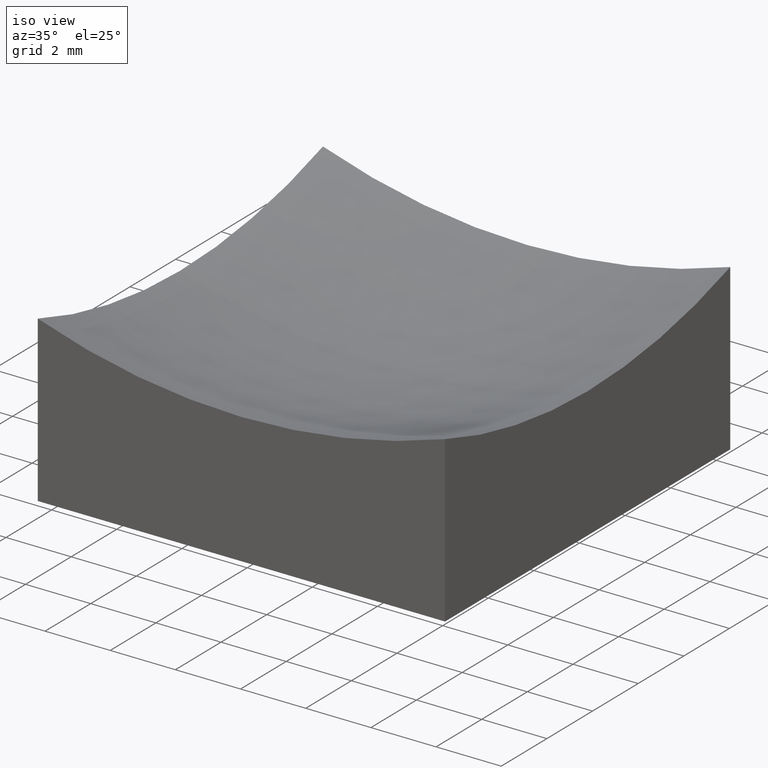
[diagram: clean part render]
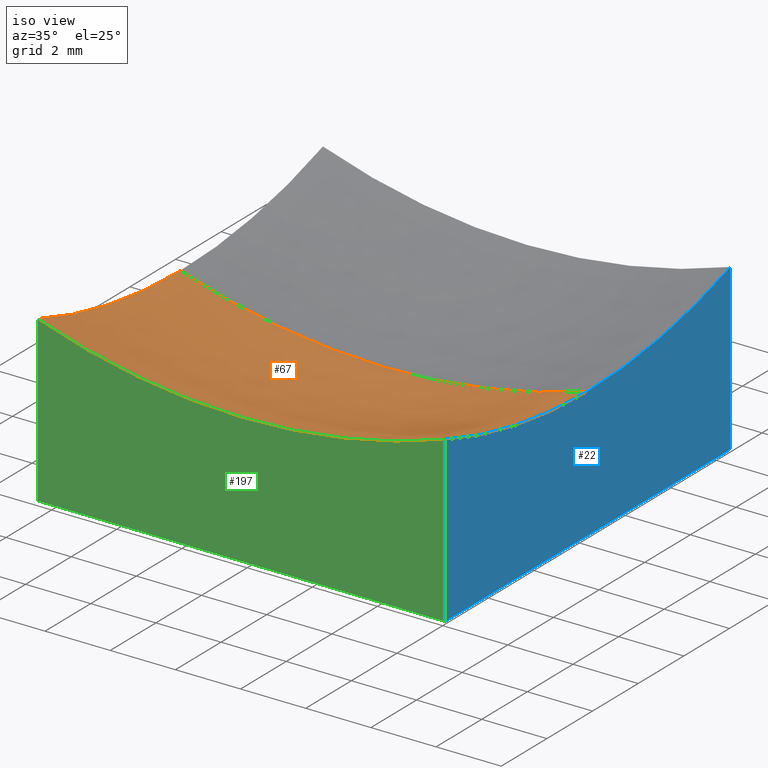
[diagram: same view with three faces highlighted in distinct colors, each labeled with its STEP entity id]
A machine part, iso view with three faces highlighted in distinct colors.
Their STEP definitions:

[orange] entity #67 — the highlighted spherical surface has radius 20 mm.
#4 = CARTESIAN_POINT ( 'NONE',  ( 6.250000000000000000, 0.0000000000000000000, 4.001644808036667555 ) ) ;
#5 = DIRECTION ( 'NONE',  ( -0.0000000000000000000, 1.000000000000000000, 0.0000000000000000000 ) ) ;
#7 = AXIS2_PLACEMENT_3D ( 'NONE', #27, #5, #236 ) ;
#14 = ORIENTED_EDGE ( 'NONE', *, *, #207, .F. ) ;
#18 = DIRECTION ( 'NONE',  ( 0.0000000000000000000, 1.000000000000000000, 0.0000000000000000000 ) ) ;
#27 = CARTESIAN_POINT ( 'NONE',  ( 2.816687638038912352E-15, 0.0000000000000000000, 23.00000000000000000 ) ) ;
#32 = EDGE_LOOP ( 'NONE', ( #192, #167, #110, #14, #208 ) ) ;
#34 = VERTEX_POINT ( 'NONE', #65 ) ;
#37 = AXIS2_PLACEMENT_3D ( 'NONE', #209, #18, #98 ) ;
#44 = FACE_OUTER_BOUND ( 'NONE', #32, .T. ) ;
#62 = DIRECTION ( 'NONE',  ( 1.224646799147353207E-16, 1.000000000000000000, 2.504325565046283805E-32 ) ) ;
#63 = DIRECTION ( 'NONE',  ( 1.000000000000000000, 0.0000000000000000000, -0.0000000000000000000 ) ) ;
#64 = AXIS2_PLACEMENT_3D ( 'NONE', #200, #202, #74 ) ;
#65 = CARTESIAN_POINT ( 'NONE',  ( 6.250000000000000000, -6.250000000000000888, 5.059124881990842759 ) ) ;
#66 = CARTESIAN_POINT ( 'NONE',  ( -6.250000000000000000, -6.250000000000000888, 5.059124881990846312 ) ) ;
#67 = ADVANCED_FACE ( 'NONE', ( #44 ), #85, .F. ) ;
#73 = VERTEX_POINT ( 'NONE', #183 ) ;
#74 = DIRECTION ( 'NONE',  ( 0.0000000000000000000, 0.0000000000000000000, -1.000000000000000000 ) ) ;
#85 = SPHERICAL_SURFACE ( 'NONE', #7, 20.00000000000000000 ) ;
#90 = EDGE_CURVE ( 'NONE', #149, #73, #215, .T. ) ;
#96 = AXIS2_PLACEMENT_3D ( 'NONE', #193, #121, #246 ) ;
#98 = DIRECTION ( 'NONE',  ( 0.0000000000000000000, 0.0000000000000000000, 1.000000000000000000 ) ) ;
#110 = ORIENTED_EDGE ( 'NONE', *, *, #203, .F. ) ;
#116 = EDGE_CURVE ( 'NONE', #34, #146, #178, .T. ) ;
#119 = CIRCLE ( 'NONE', #96, 18.99835519196332712 ) ;
#121 = DIRECTION ( 'NONE',  ( 1.000000000000000000, 0.0000000000000000000, -0.0000000000000000000 ) ) ;
#138 = CIRCLE ( 'NONE', #37, 18.99835519196332712 ) ;
#141 = AXIS2_PLACEMENT_3D ( 'NONE', #182, #63, #237 ) ;
#145 = CARTESIAN_POINT ( 'NONE',  ( 8.131208459295974111E-15, 0.0000000000000000000, 2.999999999999999112 ) ) ;
#146 = VERTEX_POINT ( 'NONE', #4 ) ;
#147 = VERTEX_POINT ( 'NONE', #66 ) ;
#149 = VERTEX_POINT ( 'NONE', #145 ) ;
#167 = ORIENTED_EDGE ( 'NONE', *, *, #90, .T. ) ;
#168 = CIRCLE ( 'NONE', #64, 20.00000000000000000 ) ;
#172 = EDGE_CURVE ( 'NONE', #149, #146, #168, .T. ) ;
#178 = CIRCLE ( 'NONE', #141, 18.99835519196333067 ) ;
#182 = CARTESIAN_POINT ( 'NONE',  ( 6.250000000000000000, 0.0000000000000000000, 23.00000000000000000 ) ) ;
#183 = CARTESIAN_POINT ( 'NONE',  ( -6.250000000000000000, 7.654042494670965495E-16, 4.001644808036671108 ) ) ;
#184 = DIRECTION ( 'NONE',  ( -1.000000000000000000, 1.224646799147353207E-16, 0.0000000000000000000 ) ) ;
#192 = ORIENTED_EDGE ( 'NONE', *, *, #172, .F. ) ;
#193 = CARTESIAN_POINT ( 'NONE',  ( -6.250000000000000000, 0.0000000000000000000, 23.00000000000000000 ) ) ;
#200 = CARTESIAN_POINT ( 'NONE',  ( 2.816687638038912352E-15, 0.0000000000000000000, 23.00000000000000000 ) ) ;
#202 = DIRECTION ( 'NONE',  ( 0.0000000000000000000, -1.000000000000000000, 0.0000000000000000000 ) ) ;
#203 = EDGE_CURVE ( 'NONE', #147, #73, #119, .T. ) ;
#207 = EDGE_CURVE ( 'NONE', #34, #147, #138, .T. ) ;
#208 = ORIENTED_EDGE ( 'NONE', *, *, #116, .T. ) ;
#209 = CARTESIAN_POINT ( 'NONE',  ( 2.816687638038912352E-15, -6.250000000000000888, 23.00000000000000000 ) ) ;
#215 = CIRCLE ( 'NONE', #231, 20.00000000000000000 ) ;
#231 = AXIS2_PLACEMENT_3D ( 'NONE', #234, #62, #184 ) ;
#234 = CARTESIAN_POINT ( 'NONE',  ( 2.816687638038912352E-15, 0.0000000000000000000, 23.00000000000000000 ) ) ;
#236 = DIRECTION ( 'NONE',  ( 1.000000000000000000, 0.0000000000000000000, 1.734723475976807094E-16 ) ) ;
#237 = DIRECTION ( 'NONE',  ( 0.0000000000000000000, 0.0000000000000000000, -1.000000000000000000 ) ) ;
#246 = DIRECTION ( 'NONE',  ( 0.0000000000000000000, 0.0000000000000000000, -1.000000000000000000 ) ) ;

[blue] entity #22 — the highlighted planar face has unit normal (1, 0, -0).
#1 = EDGE_CURVE ( 'NONE', #211, #97, #94, .T. ) ;
#2 = VECTOR ( 'NONE', #133, 1000.000000000000000 ) ;
#4 = CARTESIAN_POINT ( 'NONE',  ( 6.250000000000000000, 0.0000000000000000000, 4.001644808036667555 ) ) ;
#15 = PLANE ( 'NONE',  #53 ) ;
#21 = DIRECTION ( 'NONE',  ( -0.0000000000000000000, -0.0000000000000000000, -1.000000000000000000 ) ) ;
#22 = ADVANCED_FACE ( 'NONE', ( #190 ), #15, .T. ) ;
#28 = LINE ( 'NONE', #127, #139 ) ;
#34 = VERTEX_POINT ( 'NONE', #65 ) ;
#35 = CARTESIAN_POINT ( 'NONE',  ( 6.250000000000000000, 0.0000000000000000000, 23.00000000000000000 ) ) ;
#38 = ORIENTED_EDGE ( 'NONE', *, *, #163, .F. ) ;
#51 = DIRECTION ( 'NONE',  ( -0.0000000000000000000, 0.0000000000000000000, -1.000000000000000000 ) ) ;
#52 = ORIENTED_EDGE ( 'NONE', *, *, #1, .F. ) ;
#53 = AXIS2_PLACEMENT_3D ( 'NONE', #76, #224, #51 ) ;
#56 = CARTESIAN_POINT ( 'NONE',  ( 6.250000000000000000, 6.250000000000000888, 10.00000000000000000 ) ) ;
#57 = DIRECTION ( 'NONE',  ( 0.0000000000000000000, 0.0000000000000000000, -1.000000000000000000 ) ) ;
#59 = VERTEX_POINT ( 'NONE', #199 ) ;
#63 = DIRECTION ( 'NONE',  ( 1.000000000000000000, 0.0000000000000000000, -0.0000000000000000000 ) ) ;
#65 = CARTESIAN_POINT ( 'NONE',  ( 6.250000000000000000, -6.250000000000000888, 5.059124881990842759 ) ) ;
#76 = CARTESIAN_POINT ( 'NONE',  ( 6.250000000000000000, 6.250000000000000888, 10.00000000000000000 ) ) ;
#93 = ORIENTED_EDGE ( 'NONE', *, *, #180, .T. ) ;
#94 = LINE ( 'NONE', #56, #2 ) ;
#97 = VERTEX_POINT ( 'NONE', #142 ) ;
#100 = CARTESIAN_POINT ( 'NONE',  ( 6.250000000000000000, 6.250000000000000888, 5.059124881990842759 ) ) ;
#102 = CIRCLE ( 'NONE', #187, 18.99835519196333067 ) ;
#112 = ORIENTED_EDGE ( 'NONE', *, *, #232, .F. ) ;
#116 = EDGE_CURVE ( 'NONE', #34, #146, #178, .T. ) ;
#117 = LINE ( 'NONE', #195, #239 ) ;
#125 = DIRECTION ( 'NONE',  ( 0.0000000000000000000, -1.000000000000000000, 0.0000000000000000000 ) ) ;
#127 = CARTESIAN_POINT ( 'NONE',  ( 6.250000000000000000, 6.250000000000000888, 0.0000000000000000000 ) ) ;
#130 = ORIENTED_EDGE ( 'NONE', *, *, #116, .F. ) ;
#133 = DIRECTION ( 'NONE',  ( -0.0000000000000000000, -0.0000000000000000000, -1.000000000000000000 ) ) ;
#139 = VECTOR ( 'NONE', #125, 1000.000000000000000 ) ;
#141 = AXIS2_PLACEMENT_3D ( 'NONE', #182, #63, #237 ) ;
#142 = CARTESIAN_POINT ( 'NONE',  ( 6.250000000000000000, 6.250000000000000888, 0.0000000000000000000 ) ) ;
#146 = VERTEX_POINT ( 'NONE', #4 ) ;
#163 = EDGE_CURVE ( 'NONE', #97, #59, #28, .T. ) ;
#171 = DIRECTION ( 'NONE',  ( 1.000000000000000000, 0.0000000000000000000, -0.0000000000000000000 ) ) ;
#178 = CIRCLE ( 'NONE', #141, 18.99835519196333067 ) ;
#180 = EDGE_CURVE ( 'NONE', #34, #59, #117, .T. ) ;
#182 = CARTESIAN_POINT ( 'NONE',  ( 6.250000000000000000, 0.0000000000000000000, 23.00000000000000000 ) ) ;
#187 = AXIS2_PLACEMENT_3D ( 'NONE', #35, #171, #57 ) ;
#190 = FACE_OUTER_BOUND ( 'NONE', #223, .T. ) ;
#195 = CARTESIAN_POINT ( 'NONE',  ( 6.250000000000000000, -6.250000000000000888, 10.00000000000000000 ) ) ;
#199 = CARTESIAN_POINT ( 'NONE',  ( 6.250000000000000000, -6.250000000000000888, 0.0000000000000000000 ) ) ;
#211 = VERTEX_POINT ( 'NONE', #100 ) ;
#223 = EDGE_LOOP ( 'NONE', ( #130, #93, #38, #52, #112 ) ) ;
#224 = DIRECTION ( 'NONE',  ( 1.000000000000000000, 0.0000000000000000000, -0.0000000000000000000 ) ) ;
#232 = EDGE_CURVE ( 'NONE', #146, #211, #102, .T. ) ;
#237 = DIRECTION ( 'NONE',  ( 0.0000000000000000000, 0.0000000000000000000, -1.000000000000000000 ) ) ;
#239 = VECTOR ( 'NONE', #21, 1000.000000000000000 ) ;

[green] entity #197 — the highlighted planar face has unit normal (0, 1, 0).
#16 = EDGE_LOOP ( 'NONE', ( #120, #170, #205, #148 ) ) ;
#18 = DIRECTION ( 'NONE',  ( 0.0000000000000000000, 1.000000000000000000, 0.0000000000000000000 ) ) ;
#19 = CARTESIAN_POINT ( 'NONE',  ( -6.250000000000000000, -6.250000000000000888, 0.0000000000000000000 ) ) ;
#20 = VERTEX_POINT ( 'NONE', #19 ) ;
#21 = DIRECTION ( 'NONE',  ( -0.0000000000000000000, -0.0000000000000000000, -1.000000000000000000 ) ) ;
#24 = DIRECTION ( 'NONE',  ( 1.000000000000000000, 0.0000000000000000000, 0.0000000000000000000 ) ) ;
#34 = VERTEX_POINT ( 'NONE', #65 ) ;
#37 = AXIS2_PLACEMENT_3D ( 'NONE', #209, #18, #98 ) ;
#39 = PLANE ( 'NONE',  #206 ) ;
#42 = EDGE_CURVE ( 'NONE', #147, #20, #201, .T. ) ;
#59 = VERTEX_POINT ( 'NONE', #199 ) ;
#65 = CARTESIAN_POINT ( 'NONE',  ( 6.250000000000000000, -6.250000000000000888, 5.059124881990842759 ) ) ;
#66 = CARTESIAN_POINT ( 'NONE',  ( -6.250000000000000000, -6.250000000000000888, 5.059124881990846312 ) ) ;
#68 = VECTOR ( 'NONE', #106, 1000.000000000000000 ) ;
#79 = CARTESIAN_POINT ( 'NONE',  ( -6.250000000000000000, -6.250000000000000888, 10.00000000000000000 ) ) ;
#82 = EDGE_CURVE ( 'NONE', #20, #59, #104, .T. ) ;
#98 = DIRECTION ( 'NONE',  ( 0.0000000000000000000, 0.0000000000000000000, 1.000000000000000000 ) ) ;
#104 = LINE ( 'NONE', #126, #185 ) ;
#106 = DIRECTION ( 'NONE',  ( -0.0000000000000000000, -0.0000000000000000000, -1.000000000000000000 ) ) ;
#117 = LINE ( 'NONE', #195, #239 ) ;
#120 = ORIENTED_EDGE ( 'NONE', *, *, #180, .F. ) ;
#126 = CARTESIAN_POINT ( 'NONE',  ( -6.250000000000000000, -6.250000000000000888, 0.0000000000000000000 ) ) ;
#138 = CIRCLE ( 'NONE', #37, 18.99835519196332712 ) ;
#147 = VERTEX_POINT ( 'NONE', #66 ) ;
#148 = ORIENTED_EDGE ( 'NONE', *, *, #82, .T. ) ;
#150 = DIRECTION ( 'NONE',  ( 0.0000000000000000000, 1.000000000000000000, 0.0000000000000000000 ) ) ;
#170 = ORIENTED_EDGE ( 'NONE', *, *, #207, .T. ) ;
#177 = FACE_OUTER_BOUND ( 'NONE', #16, .T. ) ;
#180 = EDGE_CURVE ( 'NONE', #34, #59, #117, .T. ) ;
#185 = VECTOR ( 'NONE', #24, 1000.000000000000000 ) ;
#195 = CARTESIAN_POINT ( 'NONE',  ( 6.250000000000000000, -6.250000000000000888, 10.00000000000000000 ) ) ;
#197 = ADVANCED_FACE ( 'NONE', ( #177 ), #39, .F. ) ;
#199 = CARTESIAN_POINT ( 'NONE',  ( 6.250000000000000000, -6.250000000000000888, 0.0000000000000000000 ) ) ;
#201 = LINE ( 'NONE', #216, #68 ) ;
#205 = ORIENTED_EDGE ( 'NONE', *, *, #42, .T. ) ;
#206 = AXIS2_PLACEMENT_3D ( 'NONE', #79, #150, #229 ) ;
#207 = EDGE_CURVE ( 'NONE', #34, #147, #138, .T. ) ;
#209 = CARTESIAN_POINT ( 'NONE',  ( 2.816687638038912352E-15, -6.250000000000000888, 23.00000000000000000 ) ) ;
#216 = CARTESIAN_POINT ( 'NONE',  ( -6.250000000000000000, -6.250000000000000888, 10.00000000000000000 ) ) ;
#229 = DIRECTION ( 'NONE',  ( 0.0000000000000000000, -0.0000000000000000000, 1.000000000000000000 ) ) ;
#239 = VECTOR ( 'NONE', #21, 1000.000000000000000 ) ;